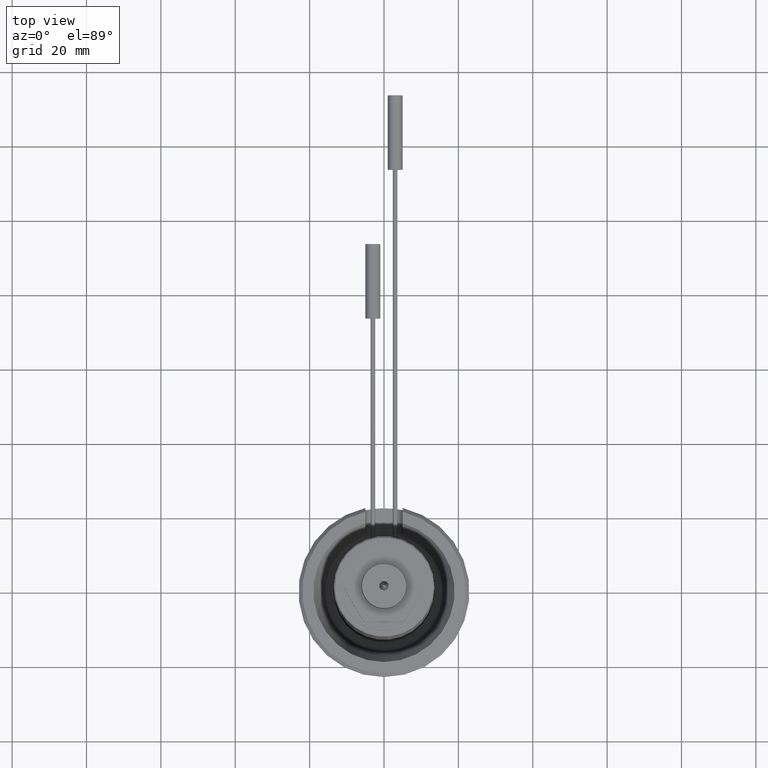
[diagram: clean part render]
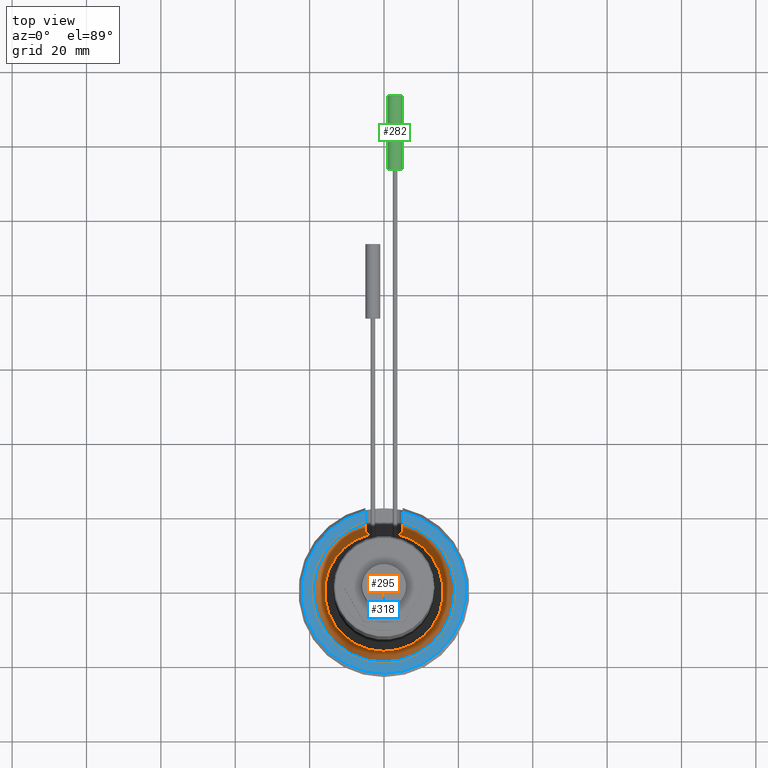
[diagram: same view with three faces highlighted in distinct colors, each labeled with its STEP entity id]
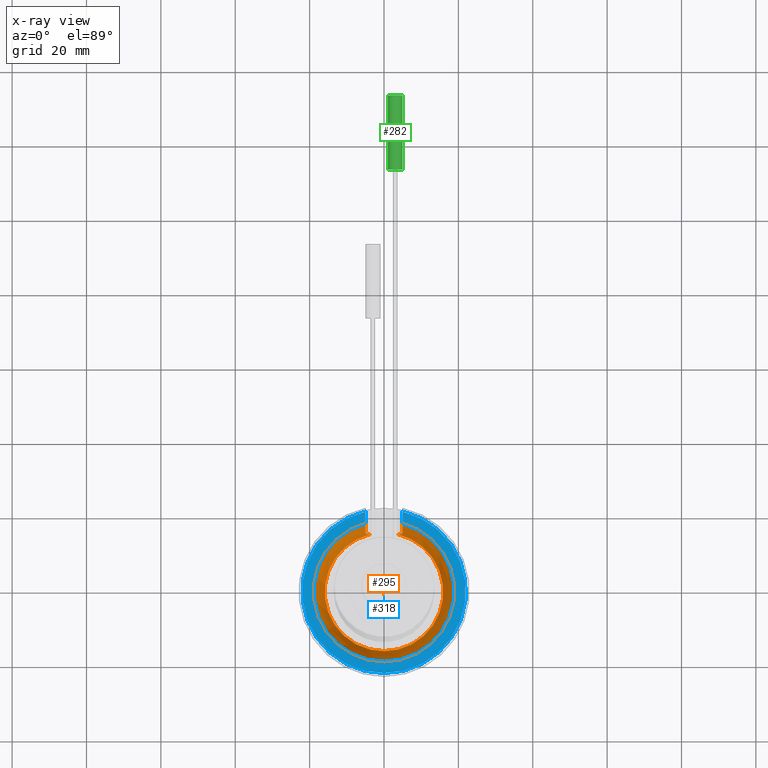
[diagram: x-ray of the same camera — body ghosted, the three highlighted faces saturated]
A machine part, top view with three faces highlighted in distinct colors.
The next image is the same camera in x-ray (body ghosted, the three faces saturated) — at least one of them is partly hidden behind the body in this view.
Their STEP definitions:

[orange] entity #295 — the highlighted conical surface has half-angle 18.76 deg.
#118=CONICAL_SURFACE('',#1153,15.9573329734641,18.7599999999998);
#136=B_SPLINE_CURVE_WITH_KNOTS('',3,(#1812,#1813,#1814,#1815,#1816,#1817,
#1818,#1819,#1820,#1821),.UNSPECIFIED.,.F.,.F.,(4,3,3,4),(0.,0.32770799258652,
0.655290656848575,1.),.UNSPECIFIED.);
#137=B_SPLINE_CURVE_WITH_KNOTS('',3,(#1823,#1824,#1825,#1826,#1827,#1828,
#1829),.UNSPECIFIED.,.F.,.F.,(4,3,4),(0.,0.718508524364148,1.),
 .UNSPECIFIED.);
#138=B_SPLINE_CURVE_WITH_KNOTS('',3,(#1833,#1834,#1835,#1836),
 .UNSPECIFIED.,.F.,.F.,(4,4),(0.,1.),.UNSPECIFIED.);
#139=B_SPLINE_CURVE_WITH_KNOTS('',3,(#1838,#1839,#1840,#1841,#1842,#1843,
#1844,#1845,#1846,#1847),.UNSPECIFIED.,.F.,.F.,(4,3,3,4),(0.,0.347353954695441,
0.696050717213932,1.),.UNSPECIFIED.);
#244=FACE_OUTER_BOUND('',#463,.T.);
#295=ADVANCED_FACE('',(#244),#118,.F.);
#463=EDGE_LOOP('',(#618,#619,#620,#621,#622,#623));
#618=ORIENTED_EDGE('',*,*,#964,.T.);
#619=ORIENTED_EDGE('',*,*,#966,.T.);
#620=ORIENTED_EDGE('',*,*,#967,.T.);
#621=ORIENTED_EDGE('',*,*,#968,.T.);
#622=ORIENTED_EDGE('',*,*,#969,.T.);
#623=ORIENTED_EDGE('',*,*,#970,.T.);
#860=VERTEX_POINT('',#1795);
#861=VERTEX_POINT('',#1797);
#862=VERTEX_POINT('',#1822);
#863=VERTEX_POINT('',#1830);
#864=VERTEX_POINT('',#1832);
#865=VERTEX_POINT('',#1837);
#964=EDGE_CURVE('',#861,#860,#1065,.T.);
#966=EDGE_CURVE('',#860,#862,#136,.T.);
#967=EDGE_CURVE('',#862,#863,#137,.T.);
#968=EDGE_CURVE('',#863,#864,#1066,.T.);
#969=EDGE_CURVE('',#864,#865,#138,.T.);
#970=EDGE_CURVE('',#865,#861,#139,.T.);
#1065=CIRCLE('',#1150,15.9573329734641);
#1066=CIRCLE('',#1152,18.9996646888082);
#1150=AXIS2_PLACEMENT_3D('',#1796,#1365,#1366);
#1152=AXIS2_PLACEMENT_3D('',#1831,#1369,#1370);
#1153=AXIS2_PLACEMENT_3D('',#1848,#1371,#1372);
#1365=DIRECTION('',(0.,0.,-1.));
#1366=DIRECTION('',(1.,0.,0.));
#1369=DIRECTION('',(0.,0.,1.));
#1370=DIRECTION('',(1.,0.,0.));
#1371=DIRECTION('',(0.,0.,1.));
#1372=DIRECTION('',(1.,0.,2.53667142699091E-16));
#1795=CARTESIAN_POINT('',(-3.72097542148827,15.5174359202378,16.0427162152864));
#1796=CARTESIAN_POINT('',(0.,0.,16.0427162152864));
#1797=CARTESIAN_POINT('',(3.72097542148828,15.5174359202378,16.0427162152864));
#1812=CARTESIAN_POINT('',(-3.72097542148827,15.5174359202378,16.0427162152864));
#1813=CARTESIAN_POINT('',(-3.98277157782718,15.5186992617101,16.2260669350134));
#1814=CARTESIAN_POINT('',(-4.21794760816638,15.5359287078045,16.4551172760731));
#1815=CARTESIAN_POINT('',(-4.40742427691912,15.572251740747,16.7099418023773));
#1816=CARTESIAN_POINT('',(-4.59687494830943,15.6085697899463,16.9647313651917));
#1817=CARTESIAN_POINT('',(-4.74573847444864,15.6651424485488,17.2519921280415));
#1818=CARTESIAN_POINT('',(-4.84450453067003,15.739471852835,17.5466931370387));
#1819=CARTESIAN_POINT('',(-4.94842189203484,15.8176780287293,17.8567647589923));
#1820=CARTESIAN_POINT('',(-4.999999999995,15.9175575952801,18.1832099799597));
#1821=CARTESIAN_POINT('',(-4.999999999995,16.0302674789854,18.5));
#1822=CARTESIAN_POINT('',(-4.999999999995,16.0302674789854,18.5));
#1823=CARTESIAN_POINT('',(-4.999999999995,16.0302674789854,18.5));
#1824=CARTESIAN_POINT('',(-4.99999999999501,16.5837981322374,20.0557906811021));
#1825=CARTESIAN_POINT('',(-4.99999999999501,17.1350924758848,21.6123779800152));
#1826=CARTESIAN_POINT('',(-4.99999999999501,17.6847176590897,23.1695526604799));
#1827=CARTESIAN_POINT('',(-4.99999999999501,17.9000466703584,23.7796136521579));
#1828=CARTESIAN_POINT('',(-4.99999999999501,18.1151171650184,24.3897659402078));
#1829=CARTESIAN_POINT('',(-4.99999999999501,18.3299552178176,25.));
#1830=CARTESIAN_POINT('',(-4.99999999999501,18.3299552178176,25.));
#1831=CARTESIAN_POINT('',(0.,0.,25.));
#1832=CARTESIAN_POINT('',(4.999999999995,18.3299552178176,25.));
#1833=CARTESIAN_POINT('',(4.999999999995,18.3299552178175,25.));
#1834=CARTESIAN_POINT('',(4.999999999995,17.56674202209,22.8321406247751));
#1835=CARTESIAN_POINT('',(4.99999999999501,16.8006554283944,20.6653044605249));
#1836=CARTESIAN_POINT('',(4.99999999999501,16.0302674789854,18.5));
#1837=CARTESIAN_POINT('',(4.99999999999501,16.0302674789854,18.5));
#1838=CARTESIAN_POINT('',(4.99999999999501,16.0302674789854,18.5));
#1839=CARTESIAN_POINT('',(4.99999999999501,15.9167119018971,18.1808330169557));
#1840=CARTESIAN_POINT('',(4.9476208680936,15.8161769555109,17.8518229738639));
#1841=CARTESIAN_POINT('',(4.8421232761929,15.7376900591994,17.5396171165134));
#1842=CARTESIAN_POINT('',(4.73637681698707,15.6590180134261,17.2266747700262));
#1843=CARTESIAN_POINT('',(4.57373545215272,15.6004690671847,16.9220537074497));
#1844=CARTESIAN_POINT('',(4.36614244084571,15.5647502097146,16.6557196662099));
#1845=CARTESIAN_POINT('',(4.18452917421592,15.5335014776663,16.4227166622082));
#1846=CARTESIAN_POINT('',(3.96430150647066,15.518610131268,16.2131312948421));
#1847=CARTESIAN_POINT('',(3.72097542148828,15.5174359202378,16.0427162152864));
#1848=CARTESIAN_POINT('',(0.,0.,16.0427162152864));

[blue] entity #318 — the highlighted planar face has unit normal (0, 0, -1).
#65=LINE('',#1961,#109);
#66=LINE('',#1965,#110);
#109=VECTOR('',#1479,1.);
#110=VECTOR('',#1482,1.);
#213=PLANE('',#1202);
#248=FACE_OUTER_BOUND('',#505,.T.);
#318=ADVANCED_FACE('',(#248),#213,.F.);
#505=EDGE_LOOP('',(#690,#691,#692,#693));
#690=ORIENTED_EDGE('',*,*,#1009,.T.);
#691=ORIENTED_EDGE('',*,*,#1010,.T.);
#692=ORIENTED_EDGE('',*,*,#1011,.F.);
#693=ORIENTED_EDGE('',*,*,#968,.F.);
#863=VERTEX_POINT('',#1830);
#864=VERTEX_POINT('',#1832);
#891=VERTEX_POINT('',#1962);
#892=VERTEX_POINT('',#1964);
#968=EDGE_CURVE('',#863,#864,#1066,.T.);
#1009=EDGE_CURVE('',#863,#891,#65,.T.);
#1010=EDGE_CURVE('',#891,#892,#1093,.T.);
#1011=EDGE_CURVE('',#864,#892,#66,.T.);
#1066=CIRCLE('',#1152,18.9996646888082);
#1093=CIRCLE('',#1201,22.);
#1152=AXIS2_PLACEMENT_3D('',#1831,#1369,#1370);
#1201=AXIS2_PLACEMENT_3D('',#1963,#1480,#1481);
#1202=AXIS2_PLACEMENT_3D('',#1966,#1483,#1484);
#1369=DIRECTION('',(0.,0.,1.));
#1370=DIRECTION('',(1.,0.,0.));
#1479=DIRECTION('',(0.,1.,0.));
#1480=DIRECTION('',(0.,0.,1.));
#1481=DIRECTION('',(-1.,0.,0.));
#1482=DIRECTION('',(0.,1.,0.));
#1483=DIRECTION('',(0.,0.,-1.));
#1484=DIRECTION('',(-1.,0.,0.));
#1830=CARTESIAN_POINT('',(-4.99999999999501,18.3299552178176,25.));
#1831=CARTESIAN_POINT('',(0.,0.,25.));
#1832=CARTESIAN_POINT('',(4.999999999995,18.3299552178176,25.));
#1961=CARTESIAN_POINT('',(-4.99999999999501,13.5,25.));
#1962=CARTESIAN_POINT('',(-4.99999999999501,21.4242852856297,25.));
#1963=CARTESIAN_POINT('',(0.,0.,25.));
#1964=CARTESIAN_POINT('',(4.999999999995,21.4242852856297,25.));
#1965=CARTESIAN_POINT('',(4.999999999995,13.5,25.));
#1966=CARTESIAN_POINT('',(-23.,0.,25.));

[green] entity #282 — the highlighted cylindrical surface (bore or boss wall) has radius 2 mm, axis along (0, -1, 0).
#282=ADVANCED_FACE('',(#378,#379),#353,.T.);
#353=CYLINDRICAL_SURFACE('',#1113,2.);
#378=FACE_BOUND('',#444,.T.);
#379=FACE_BOUND('',#445,.T.);
#444=EDGE_LOOP('',(#551));
#445=EDGE_LOOP('',(#552));
#551=ORIENTED_EDGE('',*,*,#907,.F.);
#552=ORIENTED_EDGE('',*,*,#908,.T.);
#809=VERTEX_POINT('',#1583);
#810=VERTEX_POINT('',#1585);
#907=EDGE_CURVE('',#809,#809,#1038,.T.);
#908=EDGE_CURVE('',#810,#810,#1039,.T.);
#1038=CIRCLE('',#1111,2.);
#1039=CIRCLE('',#1112,2.);
#1111=AXIS2_PLACEMENT_3D('',#1582,#1263,#1264);
#1112=AXIS2_PLACEMENT_3D('',#1584,#1265,#1266);
#1113=AXIS2_PLACEMENT_3D('',#1586,#1267,#1268);
#1263=DIRECTION('',(0.,1.,0.));
#1264=DIRECTION('',(1.,0.,0.));
#1265=DIRECTION('',(0.,1.,0.));
#1266=DIRECTION('',(1.,0.,0.));
#1267=DIRECTION('',(0.,-1.,0.));
#1268=DIRECTION('',(0.,0.,-0.999999999999999));
#1582=CARTESIAN_POINT('',(3.,133.5,18.5));
#1583=CARTESIAN_POINT('',(5.,133.5,18.5));
#1584=CARTESIAN_POINT('',(3.,113.5,18.5));
#1585=CARTESIAN_POINT('',(5.,113.5,18.5));
#1586=CARTESIAN_POINT('',(3.,133.5,18.5));